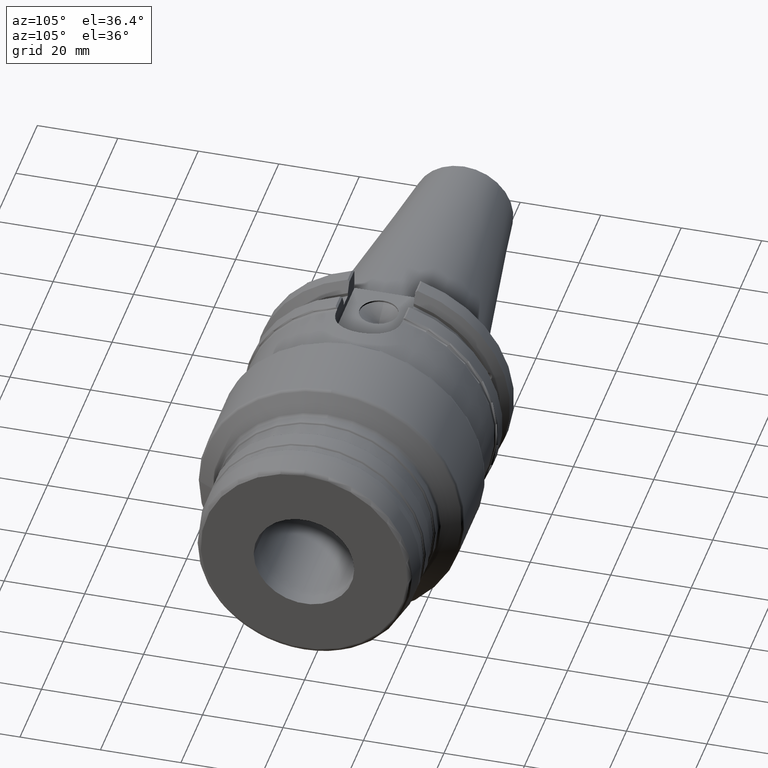
[diagram: clean part render]
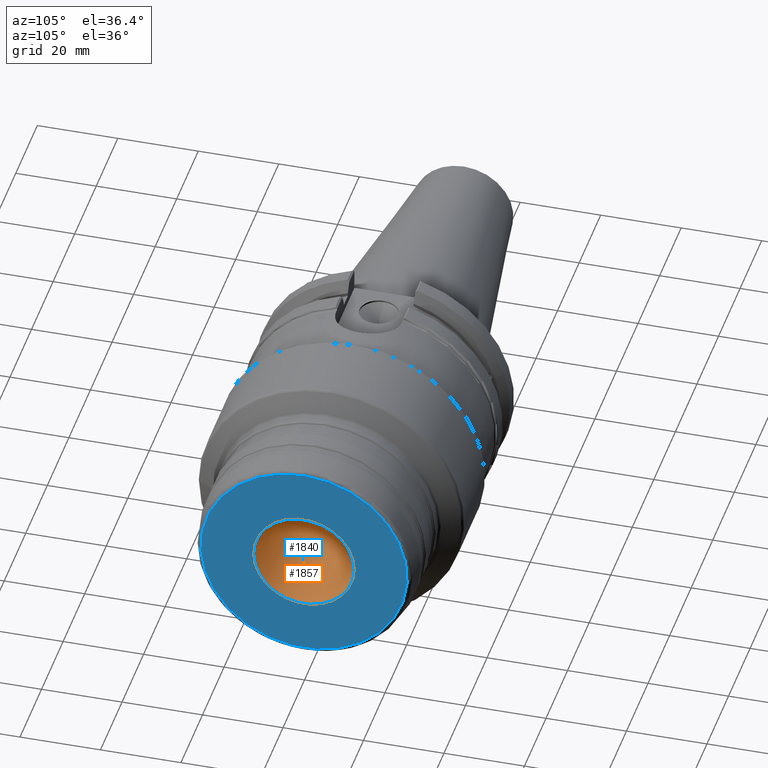
[diagram: same view with the hole feature highlighted: cylindrical wall and planar end face, labeled with their STEP entity ids]
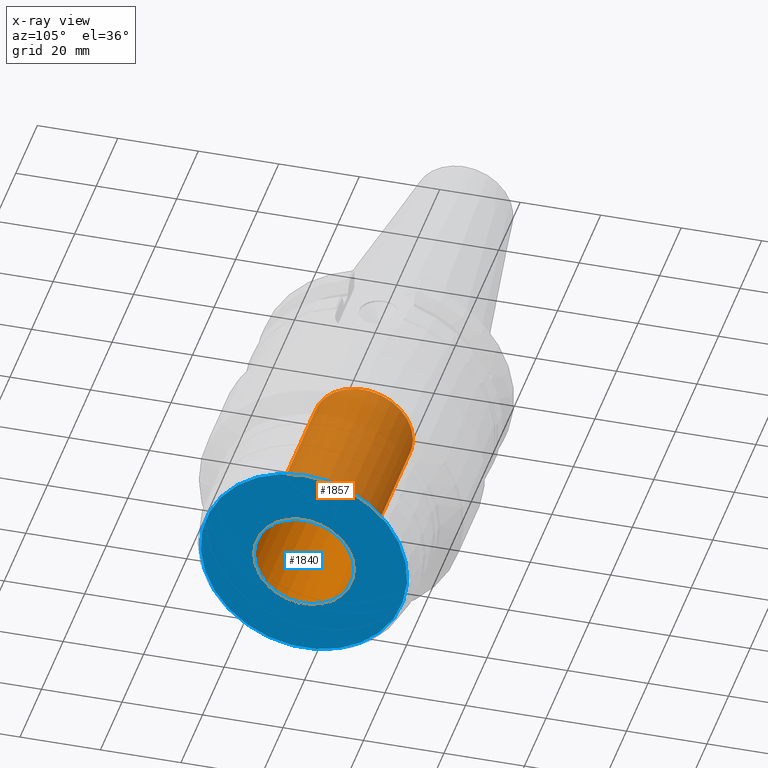
[diagram: x-ray of the same camera — body ghosted, the hole faces saturated]
A machine part, auxiliary view. The highlighted faces form one hole feature of diameter 25 mm: the cylindrical wall (entity #1857, orange) and its adjacent planar end face (entity #1840, blue) — they share a circular edge in the B-rep.
The next image is the same camera in x-ray (body ghosted, the hole faces saturated) — the bore reads through the body.
Wall:
#189=LINE('',#3282,#282);
#282=VECTOR('',#2477,12.5);
#346=CYLINDRICAL_SURFACE('',#2063,12.5);
#411=FACE_OUTER_BOUND('',#520,.T.);
#520=EDGE_LOOP('',(#1455,#1456,#1457,#1458));
#655=CIRCLE('',#2027,12.5);
#675=CIRCLE('',#2064,12.5);
#773=VERTEX_POINT('',#2940);
#831=VERTEX_POINT('',#3281);
#989=EDGE_CURVE('',#773,#773,#655,.T.);
#1063=EDGE_CURVE('',#773,#831,#189,.T.);
#1064=EDGE_CURVE('',#831,#831,#675,.T.);
#1455=ORIENTED_EDGE('',*,*,#989,.T.);
#1456=ORIENTED_EDGE('',*,*,#1063,.T.);
#1457=ORIENTED_EDGE('',*,*,#1064,.F.);
#1458=ORIENTED_EDGE('',*,*,#1063,.F.);
#1857=ADVANCED_FACE('',(#411),#346,.F.);
#2027=AXIS2_PLACEMENT_3D('',#2941,#2375,#2376);
#2063=AXIS2_PLACEMENT_3D('',#3280,#2475,#2476);
#2064=AXIS2_PLACEMENT_3D('',#3283,#2478,#2479);
#2375=DIRECTION('center_axis',(1.,0.,0.));
#2376=DIRECTION('ref_axis',(0.,0.,-1.));
#2475=DIRECTION('center_axis',(1.,0.,0.));
#2476=DIRECTION('ref_axis',(0.,1.,0.));
#2477=DIRECTION('',(-1.,0.,0.));
#2478=DIRECTION('center_axis',(1.,0.,0.));
#2479=DIRECTION('ref_axis',(0.,0.,-1.));
#2940=CARTESIAN_POINT('',(80.5,-12.5,-1.53080849893419E-15));
#2941=CARTESIAN_POINT('Origin',(80.5,0.,0.));
#3280=CARTESIAN_POINT('Origin',(53.25,0.,0.));
#3281=CARTESIAN_POINT('',(26.,-12.5,-1.53080849893419E-15));
#3282=CARTESIAN_POINT('',(53.25,-12.5,-1.53080849893419E-15));
#3283=CARTESIAN_POINT('Origin',(26.,0.,0.));
End face:
#85=FACE_BOUND('',#501,.T.);
#100=PLANE('',#2026);
#394=FACE_OUTER_BOUND('',#500,.T.);
#500=EDGE_LOOP('',(#1347));
#501=EDGE_LOOP('',(#1348));
#651=CIRCLE('',#2021,25.6609003688227);
#655=CIRCLE('',#2027,12.5);
#770=VERTEX_POINT('',#2930);
#773=VERTEX_POINT('',#2940);
#984=EDGE_CURVE('',#770,#770,#651,.T.);
#989=EDGE_CURVE('',#773,#773,#655,.T.);
#1347=ORIENTED_EDGE('',*,*,#984,.F.);
#1348=ORIENTED_EDGE('',*,*,#989,.F.);
#1840=ADVANCED_FACE('',(#394,#85),#100,.T.);
#2021=AXIS2_PLACEMENT_3D('',#2931,#2362,#2363);
#2026=AXIS2_PLACEMENT_3D('',#2939,#2373,#2374);
#2027=AXIS2_PLACEMENT_3D('',#2941,#2375,#2376);
#2362=DIRECTION('center_axis',(-1.,0.,0.));
#2363=DIRECTION('ref_axis',(0.,-1.,1.83697019872103E-16));
#2373=DIRECTION('center_axis',(1.,0.,0.));
#2374=DIRECTION('ref_axis',(0.,0.,-1.));
#2375=DIRECTION('center_axis',(1.,0.,0.));
#2376=DIRECTION('ref_axis',(0.,0.,-1.));
#2930=CARTESIAN_POINT('',(80.5,-3.14255394999179E-15,25.6609003688227));
#2931=CARTESIAN_POINT('Origin',(80.5,0.,0.));
#2939=CARTESIAN_POINT('Origin',(80.5,12.5,0.));
#2940=CARTESIAN_POINT('',(80.5,-12.5,-1.53080849893419E-15));
#2941=CARTESIAN_POINT('Origin',(80.5,0.,0.));